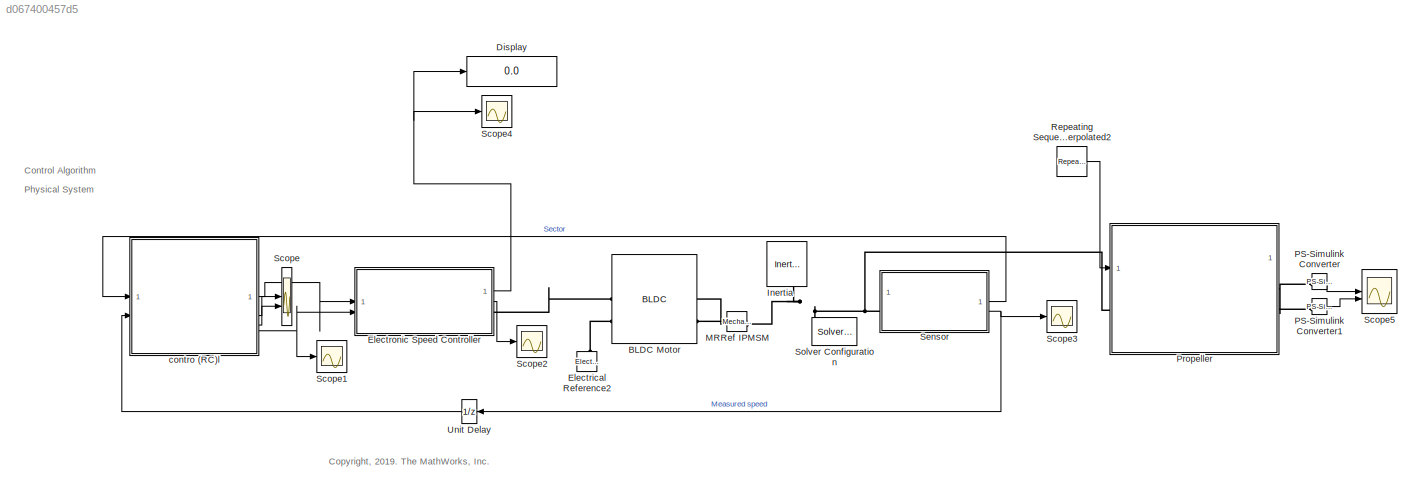
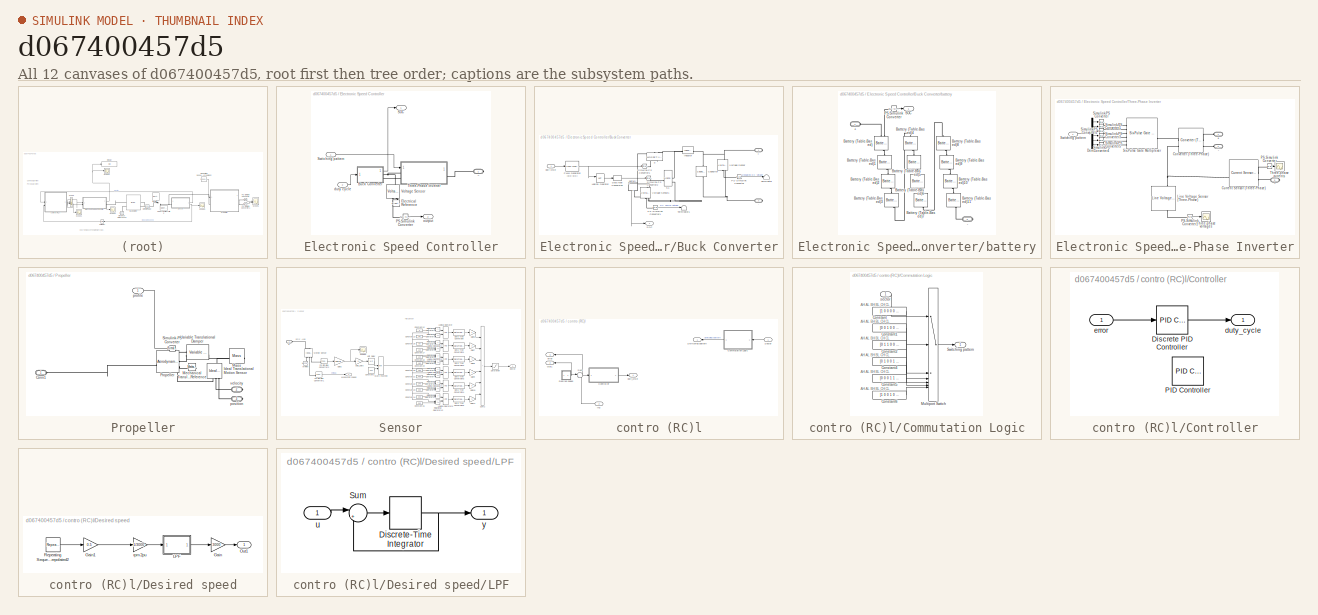
[diagram: thumbnail index - all 12 canvases of the model, root first then tree order]
MODEL slx_d067400457d5
KIND model
CONFIG AbsTol = auto
CONFIG EnableMultiTasking = on
CONFIG FixedStep = auto
CONFIG InitFcn = load bldcData\n\n\n
CONFIG MaxStep = Ts_motor
CONFIG MinStep = auto
CONFIG RelTol = 1e-3
CONFIG SampleTimeConstraint = Unconstrained
CONFIG SolverName = odeN
CONFIG StartTime = 0.0
CONFIG StopTime = 70
WORKSPACE source: mxarray member
WORKSPACE encoderResolution = 2000
WORKSPACE hallOffset = '0.5'
WORKSPACE indexOffset = 850
WORKSPACE polePairs = '4'
BLOCK [Reference] BLDC Motor  REF=ee_lib/Electromechanical/Permanent Magnet/BLDC
  SourceBlock = ee_lib/Electromechanical/Permanent Magnet/BLDC
  SourceType = BLDC
BLOCK [Display] Display
  Decimation = 1
BLOCK [Reference] Electrical Reference2  REF=fl_lib/Electrical/Electrical Elements/Electrical Reference
  NameLocation = right
  SourceBlock = fl_lib/Electrical/Electrical Elements/Electrical Reference
  SourceType = Electrical Reference
BLOCK [SubSystem] Electronic Speed Controller
  PortSchema = {"entries":[{"content":{"sides":[{"content":{"connectorIds":["In1","In2"]},"type":"ConnectorPlacement.EquallySpacedRectSide","uuid":"212924a2-9881-44be-ac25-102a7042a35a"},{"content":{"connectorIds":["Out1","RConn1","Out2"],"side":"RIGHT"},"type":"ConnectorPlacement.EquallySpacedRectSide","uuid":"ab36a5a1-3331-4a17-9c6e-72581a95a5e6"},{"content":{"side":"TOP"},"type":"ConnectorPlacement.EquallySpa...<+244ch>
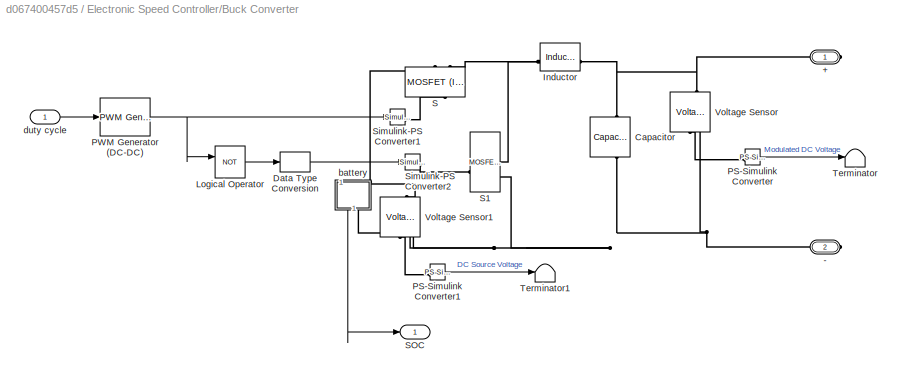
BLOCK [SubSystem] Electronic Speed Controller/Buck Converter
BLOCK [PMIOPort] Electronic Speed Controller/Buck Converter/+ 
  Side = Right
BLOCK [PMIOPort] Electronic Speed Controller/Buck Converter/- 
  Port = 2
  Side = Right
BLOCK [Reference] Electronic Speed Controller/Buck Converter/Capacitor  REF=fl_lib/Electrical/Electrical Elements/Capacitor
  NameLocation = left
  SourceBlock = fl_lib/Electrical/Electrical Elements/Capacitor
  SourceType = Capacitor
BLOCK [DataTypeConversion] Electronic Speed Controller/Buck Converter/Data Type Conversion
  RndMeth = Floor
  SaturateOnIntegerOverflow = off
BLOCK [Reference] Electronic Speed Controller/Buck Converter/Inductor  REF=fl_lib/Electrical/Electrical Elements/Inductor
  SourceBlock = fl_lib/Electrical/Electrical Elements/Inductor
  SourceType = Inductor
BLOCK [Logic] Electronic Speed Controller/Buck Converter/Logical Operator
  AllPortsSameDT = off
  Operator = NOT
  OutDataTypeStr = boolean
BLOCK [Reference] Electronic Speed Controller/Buck Converter/PS-Simulink Converter  REF=nesl_utility/PS-Simulink
Converter
  SourceBlock = nesl_utility/PS-Simulink\nConverter
  SourceType = PS-Simulink\nConverter
BLOCK [Reference] Electronic Speed Controller/Buck Converter/PS-Simulink Converter1  REF=nesl_utility/PS-Simulink
Converter
  SourceBlock = nesl_utility/PS-Simulink\nConverter
  SourceType = PS-Simulink\nConverter
BLOCK [Reference] Electronic Speed Controller/Buck Converter/PWM Generator (DC-DC)  REF=spsPWMGeneratorDCDCLib/PWM Generator
(DC-DC)
  LibrarySourceBlock = sps_lib/Power Electronics/Power Electronics Control/PWM Generator\n(DC-DC)
  SourceBlock = spsPWMGeneratorDCDCLib/PWM Generator\n(DC-DC)
  SourceType = PWM Generator (DC-DC)
BLOCK [Reference] Electronic Speed Controller/Buck Converter/S  REF=ee_lib/Semiconductors &
Converters/MOSFET
(Ideal,
Switching)
  NameLocation = right
  SourceBlock = ee_lib/Semiconductors &\nConverters/MOSFET\n(Ideal,\nSwitching)
  SourceType = MOSFET\n(Ideal,\nSwitching)
BLOCK [Reference] Electronic Speed Controller/Buck Converter/S1  REF=ee_lib/Semiconductors &
Converters/MOSFET
(Ideal,
Switching)
  SourceBlock = ee_lib/Semiconductors &\nConverters/MOSFET\n(Ideal,\nSwitching)
  SourceType = MOSFET\n(Ideal,\nSwitching)
BLOCK [Outport] Electronic Speed Controller/Buck Converter/SOC
BLOCK [Reference] Electronic Speed Controller/Buck Converter/Simulink-PS Converter1  REF=nesl_utility/Simulink-PS
Converter
  SourceBlock = nesl_utility/Simulink-PS\nConverter
  SourceType = Simulink-PS\nConverter
BLOCK [Reference] Electronic Speed Controller/Buck Converter/Simulink-PS Converter2  REF=nesl_utility/Simulink-PS
Converter
  SourceBlock = nesl_utility/Simulink-PS\nConverter
  SourceType = Simulink-PS\nConverter
BLOCK [Terminator] Electronic Speed Controller/Buck Converter/Terminator
BLOCK [Terminator] Electronic Speed Controller/Buck Converter/Terminator1
BLOCK [Reference] Electronic Speed Controller/Buck Converter/Voltage Sensor  REF=fl_lib/Electrical/Electrical Sensors/Voltage Sensor
  NameLocation = right
  SourceBlock = fl_lib/Electrical/Electrical Sensors/Voltage Sensor
  SourceType = Voltage Sensor
BLOCK [Reference] Electronic Speed Controller/Buck Converter/Voltage Sensor1  REF=fl_lib/Electrical/Electrical Sensors/Voltage Sensor
  NameLocation = right
  SourceBlock = fl_lib/Electrical/Electrical Sensors/Voltage Sensor
  SourceType = Voltage Sensor
BLOCK [SubSystem] Electronic Speed Controller/Buck Converter/battery
  NameLocation = left
  PortSchema = {"entries":[{"content":{"sides":[{"content":{"connectorIds":["LConn1"]},"type":"ConnectorPlacement.EquallySpacedRectSide","uuid":"d7b7a570-c2f3-4edc-8ff7-7a0e9bbc30c9"},{"content":{"connectorIds":["RConn1"],"side":"RIGHT"},"type":"ConnectorPlacement.EquallySpacedRectSide","uuid":"f947fad4-3458-4e9f-ac29-c97d44dde702"},{"content":{"side":"TOP"},"type":"ConnectorPlacement.EquallySpacedRectSide","uui...<+377ch>
BLOCK [PMIOPort] Electronic Speed Controller/Buck Converter/battery/+
  Side = Left
BLOCK [PMIOPort] Electronic Speed Controller/Buck Converter/battery/-
  Port = 2
  Side = Right
BLOCK [Reference] Electronic Speed Controller/Buck Converter/battery/Battery (Table-Based)  REF=batteryecm_lib/Battery
(Table-Based)
  NameLocation = right
  SourceBlock = batteryecm_lib/Battery\n(Table-Based)
  SourceType = Battery\n(Table-Based)
BLOCK [Reference] Electronic Speed Controller/Buck Converter/battery/Battery (Table-Based)1  REF=batteryecm_lib/Battery
(Table-Based)
  NameLocation = right
  SourceBlock = batteryecm_lib/Battery\n(Table-Based)
  SourceType = Battery\n(Table-Based)
BLOCK [Reference] Electronic Speed Controller/Buck Converter/battery/Battery (Table-Based)10  REF=batteryecm_lib/Battery
(Table-Based)
  NameLocation = right
  SourceBlock = batteryecm_lib/Battery\n(Table-Based)
  SourceType = Battery\n(Table-Based)
BLOCK [Reference] Electronic Speed Controller/Buck Converter/battery/Battery (Table-Based)11  REF=batteryecm_lib/Battery
(Table-Based)
  NameLocation = right
  SourceBlock = batteryecm_lib/Battery\n(Table-Based)
  SourceType = Battery\n(Table-Based)
BLOCK [Reference] Electronic Speed Controller/Buck Converter/battery/Battery (Table-Based)2  REF=batteryecm_lib/Battery
(Table-Based)
  NameLocation = right
  SourceBlock = batteryecm_lib/Battery\n(Table-Based)
  SourceType = Battery\n(Table-Based)
BLOCK [Reference] Electronic Speed Controller/Buck Converter/battery/Battery (Table-Based)3  REF=batteryecm_lib/Battery
(Table-Based)
  NameLocation = right
  SourceBlock = batteryecm_lib/Battery\n(Table-Based)
  SourceType = Battery\n(Table-Based)
BLOCK [Reference] Electronic Speed Controller/Buck Converter/battery/Battery (Table-Based)4  REF=batteryecm_lib/Battery
(Table-Based)
  NameLocation = right
  SourceBlock = batteryecm_lib/Battery\n(Table-Based)
  SourceType = Battery\n(Table-Based)
BLOCK [Reference] Electronic Speed Controller/Buck Converter/battery/Battery (Table-Based)5  REF=batteryecm_lib/Battery
(Table-Based)
  NameLocation = right
  SourceBlock = batteryecm_lib/Battery\n(Table-Based)
  SourceType = Battery\n(Table-Based)
BLOCK [Reference] Electronic Speed Controller/Buck Converter/battery/Battery (Table-Based)6  REF=batteryecm_lib/Battery
(Table-Based)
  NameLocation = right
  SourceBlock = batteryecm_lib/Battery\n(Table-Based)
  SourceType = Battery\n(Table-Based)
BLOCK [Reference] Electronic Speed Controller/Buck Converter/battery/Battery (Table-Based)7  REF=batteryecm_lib/Battery
(Table-Based)
  NameLocation = right
  SourceBlock = batteryecm_lib/Battery\n(Table-Based)
  SourceType = Battery\n(Table-Based)
BLOCK [Reference] Electronic Speed Controller/Buck Converter/battery/Battery (Table-Based)8  REF=batteryecm_lib/Battery
(Table-Based)
  NameLocation = right
  SourceBlock = batteryecm_lib/Battery\n(Table-Based)
  SourceType = Battery\n(Table-Based)
BLOCK [Reference] Electronic Speed Controller/Buck Converter/battery/Battery (Table-Based)9  REF=batteryecm_lib/Battery
(Table-Based)
  NameLocation = right
  SourceBlock = batteryecm_lib/Battery\n(Table-Based)
  SourceType = Battery\n(Table-Based)
BLOCK [Reference] Electronic Speed Controller/Buck Converter/battery/PS-Simulink Converter  REF=nesl_utility/PS-Simulink
Converter
  SourceBlock = nesl_utility/PS-Simulink\nConverter
  SourceType = PS-Simulink\nConverter
BLOCK [Outport] Electronic Speed Controller/Buck Converter/battery/SOC
BLOCK [Inport] Electronic Speed Controller/Buck Converter/duty cycle
BLOCK [Reference] Electronic Speed Controller/Electrical Reference  REF=fl_lib/Electrical/Electrical Elements/Electrical Reference
  NameLocation = right
  SourceBlock = fl_lib/Electrical/Electrical Elements/Electrical Reference
  SourceType = Electrical Reference
BLOCK [Reference] Electronic Speed Controller/PS-Simulink Converter  REF=nesl_utility/PS-Simulink
Converter
  SourceBlock = nesl_utility/PS-Simulink\nConverter
  SourceType = PS-Simulink\nConverter
BLOCK [Outport] Electronic Speed Controller/SOC
BLOCK [Inport] Electronic Speed Controller/Switching pattern
BLOCK [SubSystem] Electronic Speed Controller/Three-Phase Inverter
BLOCK [PMIOPort] Electronic Speed Controller/Three-Phase Inverter/+
  NameLocation = top
  Side = Left
BLOCK [PMIOPort] Electronic Speed Controller/Three-Phase Inverter/-
  NameLocation = top
  Port = 2
  Side = Left
BLOCK [Reference] Electronic Speed Controller/Three-Phase Inverter/Converter (Three-Phase)  REF=ee_lib/Semiconductors &
Converters/Converters/Converter
(Three-Phase)
  SourceBlock = ee_lib/Semiconductors &\nConverters/Converters/Converter\n(Three-Phase)
  SourceType = Converter\n(Three-Phase)
BLOCK [Reference] Electronic Speed Controller/Three-Phase Inverter/Current Sensor (Three-Phase)  REF=ee_lib/Sensors &
Transducers/Current Sensor
(Three-Phase)
  SourceBlock = ee_lib/Sensors &\nTransducers/Current Sensor\n(Three-Phase)
  SourceType = Current Sensor\n(Three-Phase)
BLOCK [Demux] Electronic Speed Controller/Three-Phase Inverter/Demux
  Outputs = 6
BLOCK [Reference] Electronic Speed Controller/Three-Phase Inverter/Line Voltage Sensor (Three-Phase)  REF=ee_lib/Sensors &
Transducers/Line Voltage Sensor
(Three-Phase)
  NameLocation = right
  SourceBlock = ee_lib/Sensors &\nTransducers/Line Voltage Sensor\n(Three-Phase)
  SourceType = Line Voltage Sensor\n(Three-Phase)
BLOCK [Reference] Electronic Speed Controller/Three-Phase Inverter/PS-Simulink Converter  REF=nesl_utility/PS-Simulink
Converter
  SourceBlock = nesl_utility/PS-Simulink\nConverter
  SourceType = PS-Simulink\nConverter
BLOCK [Reference] Electronic Speed Controller/Three-Phase Inverter/PS-Simulink Converter1  REF=nesl_utility/PS-Simulink
Converter
  SourceBlock = nesl_utility/PS-Simulink\nConverter
  SourceType = PS-Simulink\nConverter
BLOCK [Reference] Electronic Speed Controller/Three-Phase Inverter/Simulink-PS Converter  REF=nesl_utility/Simulink-PS
Converter
  SourceBlock = nesl_utility/Simulink-PS\nConverter
  SourceType = Simulink-PS\nConverter
BLOCK [Reference] Electronic Speed Controller/Three-Phase Inverter/Simulink-PS Converter1  REF=nesl_utility/Simulink-PS
Converter
  SourceBlock = nesl_utility/Simulink-PS\nConverter
  SourceType = Simulink-PS\nConverter
BLOCK [Reference] Electronic Speed Controller/Three-Phase Inverter/Simulink-PS Converter2  REF=nesl_utility/Simulink-PS
Converter
  SourceBlock = nesl_utility/Simulink-PS\nConverter
  SourceType = Simulink-PS\nConverter
BLOCK [Reference] Electronic Speed Controller/Three-Phase Inverter/Simulink-PS Converter3  REF=nesl_utility/Simulink-PS
Converter
  SourceBlock = nesl_utility/Simulink-PS\nConverter
  SourceType = Simulink-PS\nConverter
BLOCK [Reference] Electronic Speed Controller/Three-Phase Inverter/Simulink-PS Converter4  REF=nesl_utility/Simulink-PS
Converter
  SourceBlock = nesl_utility/Simulink-PS\nConverter
  SourceType = Simulink-PS\nConverter
BLOCK [Reference] Electronic Speed Controller/Three-Phase Inverter/Simulink-PS Converter5  REF=nesl_utility/Simulink-PS
Converter
  SourceBlock = nesl_utility/Simulink-PS\nConverter
  SourceType = Simulink-PS\nConverter
BLOCK [Reference] Electronic Speed Controller/Three-Phase Inverter/Six-Pulse Gate Multiplexer  REF=ee_lib/Semiconductors &
Converters/Converters/Six-Pulse Gate
Multiplexer
  SourceBlock = ee_lib/Semiconductors &\nConverters/Converters/Six-Pulse Gate\nMultiplexer
  SourceType = Six-Pulse Gate\nMultiplexer
BLOCK [Inport] Electronic Speed Controller/Three-Phase Inverter/Switching pattern
BLOCK [Scope] Electronic Speed Controller/Three-Phase Inverter/Three-phase currents
  Floating = off
  NumInputPorts = 1
  ScopeSpecificationString = Simulink.scopes.TimeScopeBlockCfg('CurrentConfiguration', extmgr.ConfigurationSet(extmgr.Configuration('Core','General UI',true),extmgr.Configuration('Core','Source UI',true),extmgr.Configuration('Sources','WiredSimulink',true,'DataLoggingVariableName','ScopeData1'),extmgr.Configuration('Visuals','Time Domain',true,'SerializedDisplays',{struct('MinYLimReal','-280.11334','MaxYLimReal','280.11276','...<+1618ch>
BLOCK [Scope] Electronic Speed Controller/Three-Phase Inverter/Three-phase voltages
  Floating = off
  NameLocation = top
  NumInputPorts = 1
  ScopeSpecificationString = Simulink.scopes.TimeScopeBlockCfg('CurrentConfiguration', extmgr.ConfigurationSet(extmgr.Configuration('Core','General UI',true),extmgr.Configuration('Core','Source UI',true),extmgr.Configuration('Sources','WiredSimulink',true,'DataLoggingVariableName','ScopeData2'),extmgr.Configuration('Visuals','Time Domain',true,'SerializedDisplays',{struct('MinYLimReal','-76.713','MaxYLimReal','76.57791','YLab...<+1435ch>
BLOCK [PMIOPort] Electronic Speed Controller/Three-Phase Inverter/~
  Port = 3
  Side = Right
BLOCK [Reference] Electronic Speed Controller/Voltage Sensor  REF=fl_lib/Electrical/Electrical Sensors/Voltage Sensor
  NameLocation = right
  SourceBlock = fl_lib/Electrical/Electrical Sensors/Voltage Sensor
  SourceType = Voltage Sensor
BLOCK [Inport] Electronic Speed Controller/duty cycle
  Port = 2
BLOCK [Outport] Electronic Speed Controller/output
  Port = 2
BLOCK [PMIOPort] Electronic Speed Controller/~
  Side = Right
BLOCK [Reference] Inertia  REF=fl_lib/Mechanical/Rotational Elements/Inertia
  NameLocation = right
  SourceBlock = fl_lib/Mechanical/Rotational Elements/Inertia
  SourceType = Inertia
BLOCK [Reference] MRRef IPMSM  REF=fl_lib/Mechanical/Rotational Elements/Mechanical
Rotational Reference
  NameLocation = top
  SourceBlock = fl_lib/Mechanical/Rotational Elements/Mechanical\nRotational Reference
  SourceType = Mechanical\nRotational Reference
BLOCK [Reference] PS-Simulink Converter  REF=nesl_utility/PS-Simulink
Converter
  SourceBlock = nesl_utility/PS-Simulink\nConverter
  SourceType = PS-Simulink\nConverter
BLOCK [Reference] PS-Simulink Converter1  REF=nesl_utility/PS-Simulink
Converter
  SourceBlock = nesl_utility/PS-Simulink\nConverter
  SourceType = PS-Simulink\nConverter
BLOCK [SubSystem] Propeller
BLOCK [Reference] Propeller/ Propeller  REF=sdl_lib/Engines & Motors/Aerodynamic
Propeller
  SourceBlock = sdl_lib/Engines & Motors/Aerodynamic\nPropeller
  SourceType = Aerodynamic\nPropeller
BLOCK [PMIOPort] Propeller/Conn1
  Side = Left
BLOCK [Reference] Propeller/Ideal Translational Motion Sensor  REF=fl_lib/Mechanical/Mechanical Sensors/Ideal Translational
Motion Sensor
  NameLocation = left
  SourceBlock = fl_lib/Mechanical/Mechanical Sensors/Ideal Translational\nMotion Sensor
  SourceType = Ideal Translational\nMotion Sensor
BLOCK [Reference] Propeller/Mass  REF=fl_lib/Mechanical/Translational
Elements/Mass
  NameLocation = top
  SourceBlock = fl_lib/Mechanical/Translational\nElements/Mass
  SourceType = Mass
BLOCK [Reference] Propeller/Mechanical Translational Reference  REF=fl_lib/Mechanical/Translational
Elements/Mechanical
Translational
Reference
  NameLocation = top
  SourceBlock = fl_lib/Mechanical/Translational\nElements/Mechanical\nTranslational\nReference
  SourceType = Mechanical\nTranslational\nReference
BLOCK [Reference] Propeller/Simulink-PS Converter  REF=nesl_utility/Simulink-PS
Converter
  SourceBlock = nesl_utility/Simulink-PS\nConverter
  SourceType = Simulink-PS\nConverter
BLOCK [Reference] Propeller/Variable Translational Damper  REF=sdl_lib/Couplings & Drives/Springs & Dampers/Variable
Translational Damper
  SourceBlock = sdl_lib/Couplings & Drives/Springs & Dampers/Variable\nTranslational Damper
  SourceType = Variable\nTranslational Damper
BLOCK [PMIOPort] Propeller/position
  Port = 3
  Side = Right
BLOCK [Inport] Propeller/profile
BLOCK [PMIOPort] Propeller/velocity
  Port = 2
  Side = Right
BLOCK [Reference] Repeating Sequence Interpolated2  REF=simulink/Sources/Repeating
Sequence
Interpolated
  SourceBlock = simulink/Sources/Repeating\nSequence\nInterpolated
  SourceType = Repeating Sequence Interpolated
BLOCK [Scope] Scope
  Floating = off
  NumInputPorts = 2
  ScopeSpecificationString = Simulink.scopes.TimeScopeBlockCfg('CurrentConfiguration', extmgr.ConfigurationSet(extmgr.Configuration('Core','General UI',true),extmgr.Configuration('Core','Source UI',true),extmgr.Configuration('Sources','WiredSimulink',true,'DataLoggingVariableName','ScopeData1'),extmgr.Configuration('Visuals','Time Domain',true,'SerializedDisplays',{struct('MinYLimReal','-69.69398','MaxYLimReal','577.18822','Y...<+1541ch>
BLOCK [Scope] Scope1
  Floating = off
  NumInputPorts = 1
  ScopeSpecificationString = Simulink.scopes.TimeScopeBlockCfg('CurrentConfiguration', extmgr.ConfigurationSet(extmgr.Configuration('Core','General UI',true),extmgr.Configuration('Core','Source UI',true),extmgr.Configuration('Sources','WiredSimulink',true,'DataLoggingVariableName','ScopeData2'),extmgr.Configuration('Visuals','Time Domain',true,'SerializedDisplays',{struct('MinYLimReal','-0.03395','MaxYLimReal','0.30551','YLab...<+1535ch>
BLOCK [Scope] Scope2
  Floating = off
  NumInputPorts = 1
  ScopeSpecificationString = Simulink.scopes.TimeScopeBlockCfg('CurrentConfiguration', extmgr.ConfigurationSet(extmgr.Configuration('Core','General UI',true),extmgr.Configuration('Core','Source UI',true),extmgr.Configuration('Sources','WiredSimulink',true,'DataLoggingVariableName','ScopeData3'),extmgr.Configuration('Visuals','Time Domain',true,'SerializedDisplays',{struct('MinYLimReal','-61.7712','MaxYLimReal','69.09622','YLa...<+1581ch>
BLOCK [Scope] Scope3
  Floating = off
  NumInputPorts = 1
  ScopeSpecificationString = Simulink.scopes.TimeScopeBlockCfg('CurrentConfiguration', extmgr.ConfigurationSet(extmgr.Configuration('Core','General UI',true),extmgr.Configuration('Core','Source UI',true),extmgr.Configuration('Sources','WiredSimulink',true,'DataLoggingVariableName','ScopeData4'),extmgr.Configuration('Visuals','Time Domain',true,'SerializedDisplays',{struct('MinYLimReal','-55.22714','MaxYLimReal','497.04423','Y...<+1528ch>
BLOCK [Scope] Scope4
  Floating = off
  NumInputPorts = 1
  ScopeSpecificationString = Simulink.scopes.TimeScopeBlockCfg('CurrentConfiguration', extmgr.ConfigurationSet(extmgr.Configuration('Core','General UI',true),extmgr.Configuration('Core','Source UI',true),extmgr.Configuration('Sources','WiredSimulink',true,'DataLoggingVariableName','ScopeData1'),extmgr.Configuration('Visuals','Time Domain',true,'SerializedDisplays',{struct('MinYLimReal','0.71343','MaxYLimReal','1.03184','YLabe...<+1530ch>
BLOCK [Scope] Scope5
  Floating = off
  NumInputPorts = 2
  ScopeSpecificationString = Simulink.scopes.TimeScopeBlockCfg('CurrentConfiguration', extmgr.ConfigurationSet(extmgr.Configuration('Core','General UI',true),extmgr.Configuration('Core','Source UI',true),extmgr.Configuration('Sources','WiredSimulink',true,'DataLoggingVariableName','ScopeData2'),extmgr.Configuration('Visuals','Time Domain',true,'SerializedDisplays',{struct('MinYLimReal','-4416.41047','MaxYLimReal','39747.69419...<+1571ch>
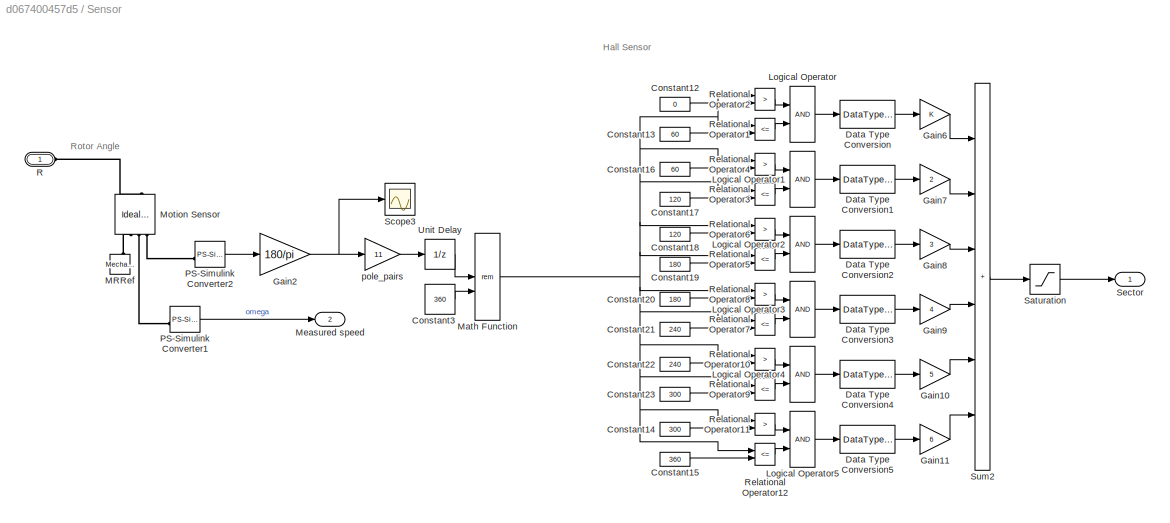
BLOCK [SubSystem] Sensor
BLOCK [Constant] Sensor/Constant12
  Value = 0
BLOCK [Constant] Sensor/Constant13
  Value = 60
BLOCK [Constant] Sensor/Constant14
  Value = 300
BLOCK [Constant] Sensor/Constant15
  Value = 360
BLOCK [Constant] Sensor/Constant16
  Value = 60
BLOCK [Constant] Sensor/Constant17
  Value = 120
BLOCK [Constant] Sensor/Constant18
  Value = 120
BLOCK [Constant] Sensor/Constant19
  Value = 180
BLOCK [Constant] Sensor/Constant20
  Value = 180
BLOCK [Constant] Sensor/Constant21
  Value = 240
BLOCK [Constant] Sensor/Constant22
  Value = 240
BLOCK [Constant] Sensor/Constant23
  Value = 300
BLOCK [Constant] Sensor/Constant3
  Value = 360
BLOCK [DataTypeConversion] Sensor/Data Type Conversion
BLOCK [DataTypeConversion] Sensor/Data Type Conversion1
BLOCK [DataTypeConversion] Sensor/Data Type Conversion2
BLOCK [DataTypeConversion] Sensor/Data Type Conversion3
BLOCK [DataTypeConversion] Sensor/Data Type Conversion4
BLOCK [DataTypeConversion] Sensor/Data Type Conversion5
BLOCK [Gain] Sensor/Gain10
  Gain = 5
  OutDataTypeStr = Inherit: Same as input
  ParamDataTypeStr = Inherit: Same as input
  SaturateOnIntegerOverflow = on
BLOCK [Gain] Sensor/Gain11
  Gain = 6
  OutDataTypeStr = Inherit: Same as input
  ParamDataTypeStr = Inherit: Same as input
  SaturateOnIntegerOverflow = on
BLOCK [Gain] Sensor/Gain2
  Gain = 180/pi
BLOCK [Gain] Sensor/Gain6
  OutDataTypeStr = Inherit: Same as input
  ParamDataTypeStr = Inherit: Same as input
  SaturateOnIntegerOverflow = on
BLOCK [Gain] Sensor/Gain7
  Gain = 2
  OutDataTypeStr = Inherit: Same as input
  ParamDataTypeStr = Inherit: Same as input
  SaturateOnIntegerOverflow = on
BLOCK [Gain] Sensor/Gain8
  Gain = 3
  OutDataTypeStr = Inherit: Same as input
  ParamDataTypeStr = Inherit: Same as input
  SaturateOnIntegerOverflow = on
BLOCK [Gain] Sensor/Gain9
  Gain = 4
  OutDataTypeStr = Inherit: Same as input
  ParamDataTypeStr = Inherit: Same as input
  SaturateOnIntegerOverflow = on
BLOCK [Logic] Sensor/Logical Operator
BLOCK [Logic] Sensor/Logical Operator1
BLOCK [Logic] Sensor/Logical Operator2
BLOCK [Logic] Sensor/Logical Operator3
BLOCK [Logic] Sensor/Logical Operator4
BLOCK [Logic] Sensor/Logical Operator5
BLOCK [Reference] Sensor/MRRef  REF=fl_lib/Mechanical/Rotational Elements/Mechanical
Rotational Reference
  NameLocation = left
  SourceBlock = fl_lib/Mechanical/Rotational Elements/Mechanical\nRotational Reference
  SourceType = Mechanical\nRotational Reference
BLOCK [Math] Sensor/Math Function
  Operator = rem
  SignedPower = on
BLOCK [Outport] Sensor/Measured speed
  Port = 2
BLOCK [Reference] Sensor/Motion Sensor  REF=fl_lib/Mechanical/Mechanical Sensors/Ideal Rotational
Motion Sensor
  NameLocation = right
  SourceBlock = fl_lib/Mechanical/Mechanical Sensors/Ideal Rotational\nMotion Sensor
  SourceType = Ideal Rotational\nMotion Sensor
BLOCK [Reference] Sensor/PS-Simulink Converter1  REF=nesl_utility/PS-Simulink
Converter
  SourceBlock = nesl_utility/PS-Simulink\nConverter
  SourceType = PS-Simulink\nConverter
BLOCK [Reference] Sensor/PS-Simulink Converter2  REF=nesl_utility/PS-Simulink
Converter
  SourceBlock = nesl_utility/PS-Simulink\nConverter
  SourceType = PS-Simulink\nConverter
BLOCK [PMIOPort] Sensor/R
  NameLocation = top
  Side = Left
BLOCK [RelationalOperator] Sensor/Relational Operator1
  Operator = <=
BLOCK [RelationalOperator] Sensor/Relational Operator10
  Operator = >
BLOCK [RelationalOperator] Sensor/Relational Operator11
  Operator = >
BLOCK [RelationalOperator] Sensor/Relational Operator12
  Operator = <=
BLOCK [RelationalOperator] Sensor/Relational Operator2
  Operator = >
BLOCK [RelationalOperator] Sensor/Relational Operator3
  Operator = <=
BLOCK [RelationalOperator] Sensor/Relational Operator4
  Operator = >
BLOCK [RelationalOperator] Sensor/Relational Operator5
  Operator = <=
BLOCK [RelationalOperator] Sensor/Relational Operator6
  Operator = >
BLOCK [RelationalOperator] Sensor/Relational Operator7
  Operator = <=
BLOCK [RelationalOperator] Sensor/Relational Operator8
  Operator = >
BLOCK [RelationalOperator] Sensor/Relational Operator9
  Operator = <=
BLOCK [Saturate] Sensor/Saturation
  LowerLimit = 1
  UpperLimit = 6
BLOCK [Scope] Sensor/Scope3
  Floating = off
  NumInputPorts = 1
  ScopeSpecificationString = Simulink.scopes.TimeScopeBlockCfg('CurrentConfiguration', extmgr.ConfigurationSet(extmgr.Configuration('Core','General UI',true),extmgr.Configuration('Core','Source UI',true),extmgr.Configuration('Sources','WiredSimulink',true,'DataLoggingVariableName','ScopeData1','DataLogging',true,'DataLoggingSaveFormat','StructureWithTime'),extmgr.Configuration('Visuals','Time Domain',true,'SerializedDisplays'...<+1543ch>
BLOCK [Outport] Sensor/Sector
  NameLocation = top
BLOCK [Sum] Sensor/Sum2
  IconShape = rectangular
  InputSameDT = on
  Inputs = ++++++
  OutDataTypeStr = Inherit: Same as first input
  SaturateOnIntegerOverflow = on
BLOCK [UnitDelay] Sensor/Unit Delay
  HasFrameUpgradeWarning = on
  SampleTime = Ts_motor
BLOCK [Gain] Sensor/pole_pairs
  Gain = 11
  NameLocation = top
BLOCK [Reference] Solver Configuration  REF=nesl_utility/Solver
Configuration
  NameLocation = top
  SourceBlock = nesl_utility/Solver\nConfiguration
  SourceType = Solver\nConfiguration
BLOCK [UnitDelay] Unit Delay
  HasFrameUpgradeWarning = on
  SampleTime = -1
BLOCK [SubSystem] contro (RC)l
BLOCK [SubSystem] contro (RC)l/Commutation Logic
  ShowPortLabels = none
BLOCK [Outport] contro (RC)l/Commutation Logic/  Switching pattern
  VectorParamsAs1DForOutWhenUnconnected = off
BLOCK [Constant] contro (RC)l/Commutation Logic/Constant
  Value = [1 0 0 0 0 1]
BLOCK [Constant] contro (RC)l/Commutation Logic/Constant1
  Value = [0 0 1 0 0 1]
BLOCK [Constant] contro (RC)l/Commutation Logic/Constant2
  Value = [0 1 1 0 0 0]
BLOCK [Constant] contro (RC)l/Commutation Logic/Constant4
  Value = [0 1 0 0 1 0]
BLOCK [Constant] contro (RC)l/Commutation Logic/Constant5
  Value = [0 0 0 1 1 0]
BLOCK [Constant] contro (RC)l/Commutation Logic/Constant6
  Value = [1 0 0 1 0 0]
BLOCK [MultiPortSwitch] contro (RC)l/Commutation Logic/Multiport Switch
  InputSameDT = off
  Inputs = 6
  SaturateOnIntegerOverflow = off
BLOCK [Inport] contro (RC)l/Commutation Logic/sector
  NameLocation = top
BLOCK [SubSystem] contro (RC)l/Controller
BLOCK [Reference] contro (RC)l/Controller/Discrete PID Controller  REF=slpidlib/PID Controller
  SourceBlock = slpidlib/PID Controller
  SourceType = PID 1dof
BLOCK [Reference] contro (RC)l/Controller/PID Controller  REF=slpidlib/PID Controller
  Commented = on
  LibrarySourceBlock = simulink/Continuous/PID Controller
  SourceBlock = slpidlib/PID Controller
  SourceType = PID 1dof
BLOCK [Outport] contro (RC)l/Controller/duty_cycle
BLOCK [Inport] contro (RC)l/Controller/error
BLOCK [SubSystem] contro (RC)l/Desired speed
  ShowPortLabels = none
BLOCK [Gain] contro (RC)l/Desired speed/Gain
  Gain = 3000
BLOCK [Gain] contro (RC)l/Desired speed/Gain1
  Gain = 0.5
BLOCK [SubSystem] contro (RC)l/Desired speed/LPF
BLOCK [DiscreteIntegrator] contro (RC)l/Desired speed/LPF/Discrete-Time Integrator
  ICPrevOutput = DiscIntNeverNeededParam
  ICPrevScaledInput = DiscIntNeverNeededParam
  InitialConditionSetting = Auto
  SampleTime = Ts_motor
  gainval = 20
BLOCK [Sum] contro (RC)l/Desired speed/LPF/Sum
  Inputs = |+-
BLOCK [Inport] contro (RC)l/Desired speed/LPF/u
BLOCK [Outport] contro (RC)l/Desired speed/LPF/y
BLOCK [Outport] contro (RC)l/Desired speed/Out1
BLOCK [Reference] contro (RC)l/Desired speed/Repeating Sequence Interpolated2  REF=simulink/Sources/Repeating
Sequence
Interpolated
  SourceBlock = simulink/Sources/Repeating\nSequence\nInterpolated
  SourceType = Repeating Sequence Interpolated
BLOCK [Gain] contro (RC)l/Desired speed/rpm2pu
  Gain = 1/3000
  OutDataTypeStr = Inherit: Same as input
  RndMeth = Simplest
BLOCK [Inport] contro (RC)l/In2
  Port = 2
BLOCK [Outport] contro (RC)l/Out1
  NameLocation = top
  Port = 2
BLOCK [Inport] contro (RC)l/Sector
  NameLocation = top
BLOCK [Sum] contro (RC)l/Sum
  Inputs = |+-
BLOCK [Outport] contro (RC)l/Switching pattern
  NameLocation = top
BLOCK [Outport] contro (RC)l/duty_cycle
  Port = 4
BLOCK [Outport] contro (RC)l/error
  NameLocation = top
  Port = 3
ANNOTATION (root): Control Algorithm
ANNOTATION (root): <copyright redacted>
ANNOTATION (root): Physical System
ANNOTATION Sensor: Hall Sensor
ANNOTATION Sensor: Rotor Angle
ANNOTATION contro (RC)l/Commutation Logic: AH AL BH BL CH CL
LINE Electronic Speed Controller/Buck Converter/Data Type Conversion:1 -> Electronic Speed Controller/Buck Converter/Simulink-PS Converter2:1
LINE Electronic Speed Controller/Buck Converter/Logical Operator:1 -> Electronic Speed Controller/Buck Converter/Data Type Conversion:1
LINE Electronic Speed Controller/Buck Converter/PS-Simulink Converter1:1 -> Electronic Speed Controller/Buck Converter/Terminator1:1
LINE Electronic Speed Controller/Buck Converter/PS-Simulink Converter:1 -> Electronic Speed Controller/Buck Converter/Terminator:1
NET Electronic Speed Controller/Buck Converter/PWM Generator (DC-DC):1 -> Electronic Speed Controller/Buck Converter/Logical Operator:1, Electronic Speed Controller/Buck Converter/Simulink-PS Converter1:1
LINE Electronic Speed Controller/Buck Converter/battery/PS-Simulink Converter:1 -> Electronic Speed Controller/Buck Converter/battery/SOC:1
LINE Electronic Speed Controller/Buck Converter/battery:1 -> Electronic Speed Controller/Buck Converter/SOC:1
LINE Electronic Speed Controller/Buck Converter/duty cycle:1 -> Electronic Speed Controller/Buck Converter/PWM Generator (DC-DC):1
LINE Electronic Speed Controller/Buck Converter:1 -> Electronic Speed Controller/SOC:1
LINE Electronic Speed Controller/PS-Simulink Converter:1 -> Electronic Speed Controller/output:1
LINE Electronic Speed Controller/Switching pattern:1 -> Electronic Speed Controller/Three-Phase Inverter:1
LINE Electronic Speed Controller/Three-Phase Inverter/Demux:1 -> Electronic Speed Controller/Three-Phase Inverter/Simulink-PS Converter:1
LINE Electronic Speed Controller/Three-Phase Inverter/Demux:2 -> Electronic Speed Controller/Three-Phase Inverter/Simulink-PS Converter1:1
LINE Electronic Speed Controller/Three-Phase Inverter/Demux:3 -> Electronic Speed Controller/Three-Phase Inverter/Simulink-PS Converter2:1
LINE Electronic Speed Controller/Three-Phase Inverter/Demux:4 -> Electronic Speed Controller/Three-Phase Inverter/Simulink-PS Converter3:1
LINE Electronic Speed Controller/Three-Phase Inverter/Demux:5 -> Electronic Speed Controller/Three-Phase Inverter/Simulink-PS Converter4:1
LINE Electronic Speed Controller/Three-Phase Inverter/Demux:6 -> Electronic Speed Controller/Three-Phase Inverter/Simulink-PS Converter5:1
LINE Electronic Speed Controller/Three-Phase Inverter/PS-Simulink Converter1:1 -> Electronic Speed Controller/Three-Phase Inverter/Three-phase voltages:1
LINE Electronic Speed Controller/Three-Phase Inverter/PS-Simulink Converter:1 -> Electronic Speed Controller/Three-Phase Inverter/Three-phase currents:1
LINE Electronic Speed Controller/Three-Phase Inverter/Switching pattern:1 -> Electronic Speed Controller/Three-Phase Inverter/Demux:1
LINE Electronic Speed Controller/duty cycle:1 -> Electronic Speed Controller/Buck Converter:1
NET Electronic Speed Controller:1 -> Display:1, Scope4:1
LINE Electronic Speed Controller:2 -> Scope2:1
LINE PS-Simulink Converter1:1 -> Scope5:2
LINE PS-Simulink Converter:1 -> Scope5:1
LINE Propeller/profile:1 -> Propeller/Simulink-PS Converter:1
LINE Repeating Sequence Interpolated2:1 -> Propeller:1
LINE Sensor/Constant12:1 -> Sensor/Relational Operator2:2
LINE Sensor/Constant13:1 -> Sensor/Relational Operator1:2
LINE Sensor/Constant14:1 -> Sensor/Relational Operator11:2
LINE Sensor/Constant15:1 -> Sensor/Relational Operator12:2
LINE Sensor/Constant16:1 -> Sensor/Relational Operator4:2
LINE Sensor/Constant17:1 -> Sensor/Relational Operator3:2
LINE Sensor/Constant18:1 -> Sensor/Relational Operator6:2
LINE Sensor/Constant19:1 -> Sensor/Relational Operator5:2
LINE Sensor/Constant20:1 -> Sensor/Relational Operator8:2
LINE Sensor/Constant21:1 -> Sensor/Relational Operator7:2
LINE Sensor/Constant22:1 -> Sensor/Relational Operator10:2
LINE Sensor/Constant23:1 -> Sensor/Relational Operator9:2
LINE Sensor/Constant3:1 -> Sensor/Math Function:2
LINE Sensor/Data Type Conversion1:1 -> Sensor/Gain7:1
LINE Sensor/Data Type Conversion2:1 -> Sensor/Gain8:1
LINE Sensor/Data Type Conversion3:1 -> Sensor/Gain9:1
LINE Sensor/Data Type Conversion4:1 -> Sensor/Gain10:1
LINE Sensor/Data Type Conversion5:1 -> Sensor/Gain11:1
LINE Sensor/Data Type Conversion:1 -> Sensor/Gain6:1
LINE Sensor/Gain10:1 -> Sensor/Sum2:5
LINE Sensor/Gain11:1 -> Sensor/Sum2:6
NET Sensor/Gain2:1 -> Sensor/Scope3:1, Sensor/pole_pairs:1
LINE Sensor/Gain6:1 -> Sensor/Sum2:1
LINE Sensor/Gain7:1 -> Sensor/Sum2:2
LINE Sensor/Gain8:1 -> Sensor/Sum2:3
LINE Sensor/Gain9:1 -> Sensor/Sum2:4
LINE Sensor/Logical Operator1:1 -> Sensor/Data Type Conversion1:1
LINE Sensor/Logical Operator2:1 -> Sensor/Data Type Conversion2:1
LINE Sensor/Logical Operator3:1 -> Sensor/Data Type Conversion3:1
LINE Sensor/Logical Operator4:1 -> Sensor/Data Type Conversion4:1
LINE Sensor/Logical Operator5:1 -> Sensor/Data Type Conversion5:1
LINE Sensor/Logical Operator:1 -> Sensor/Data Type Conversion:1
NET Sensor/Math Function:1 -> Sensor/Relational Operator10:1, Sensor/Relational Operator11:1, Sensor/Relational Operator12:1, Sensor/Relational Operator1:1, Sensor/Relational Operator2:1, Sensor/Relational Operator3:1, Sensor/Relational Operator4:1, Sensor/Relational Operator5:1, Sensor/Relational Operator6:1, Sensor/Relational Operator7:1, Sensor/Relational Operator8:1, Sensor/Relational Operator9:1
LINE Sensor/PS-Simulink Converter1:1 -> Sensor/Measured speed:1
LINE Sensor/PS-Simulink Converter2:1 -> Sensor/Gain2:1
LINE Sensor/Relational Operator10:1 -> Sensor/Logical Operator4:1
LINE Sensor/Relational Operator11:1 -> Sensor/Logical Operator5:1
LINE Sensor/Relational Operator12:1 -> Sensor/Logical Operator5:2
LINE Sensor/Relational Operator1:1 -> Sensor/Logical Operator:2
LINE Sensor/Relational Operator2:1 -> Sensor/Logical Operator:1
LINE Sensor/Relational Operator3:1 -> Sensor/Logical Operator1:2
LINE Sensor/Relational Operator4:1 -> Sensor/Logical Operator1:1
LINE Sensor/Relational Operator5:1 -> Sensor/Logical Operator2:2
LINE Sensor/Relational Operator6:1 -> Sensor/Logical Operator2:1
LINE Sensor/Relational Operator7:1 -> Sensor/Logical Operator3:2
LINE Sensor/Relational Operator8:1 -> Sensor/Logical Operator3:1
LINE Sensor/Relational Operator9:1 -> Sensor/Logical Operator4:2
LINE Sensor/Saturation:1 -> Sensor/Sector:1
LINE Sensor/Sum2:1 -> Sensor/Saturation:1
LINE Sensor/Unit Delay:1 -> Sensor/Math Function:1
LINE Sensor/pole_pairs:1 -> Sensor/Unit Delay:1
LINE Sensor:1 -> contro (RC)l:1
NET Sensor:2 -> Scope3:1, Unit Delay:1
LINE Unit Delay:1 -> contro (RC)l:2
LINE contro (RC)l/Commutation Logic/Constant1:1 -> contro (RC)l/Commutation Logic/Multiport Switch:3
LINE contro (RC)l/Commutation Logic/Constant2:1 -> contro (RC)l/Commutation Logic/Multiport Switch:4
LINE contro (RC)l/Commutation Logic/Constant4:1 -> contro (RC)l/Commutation Logic/Multiport Switch:5
LINE contro (RC)l/Commutation Logic/Constant5:1 -> contro (RC)l/Commutation Logic/Multiport Switch:6
LINE contro (RC)l/Commutation Logic/Constant6:1 -> contro (RC)l/Commutation Logic/Multiport Switch:7
LINE contro (RC)l/Commutation Logic/Constant:1 -> contro (RC)l/Commutation Logic/Multiport Switch:2
LINE contro (RC)l/Commutation Logic/Multiport Switch:1 -> contro (RC)l/Commutation Logic/  Switching pattern:1
LINE contro (RC)l/Commutation Logic/sector:1 -> contro (RC)l/Commutation Logic/Multiport Switch:1
LINE contro (RC)l/Commutation Logic:1 -> contro (RC)l/Switching pattern:1
LINE contro (RC)l/Controller/Discrete PID Controller:1 -> contro (RC)l/Controller/duty_cycle:1
LINE contro (RC)l/Controller/error:1 -> contro (RC)l/Controller/Discrete PID Controller:1
LINE contro (RC)l/Controller:1 -> contro (RC)l/duty_cycle:1
LINE contro (RC)l/Desired speed/Gain1:1 -> contro (RC)l/Desired speed/rpm2pu:1
LINE contro (RC)l/Desired speed/Gain:1 -> contro (RC)l/Desired speed/Out1:1
NET contro (RC)l/Desired speed/LPF/Discrete-Time Integrator:1 -> contro (RC)l/Desired speed/LPF/Sum:2, contro (RC)l/Desired speed/LPF/y:1
LINE contro (RC)l/Desired speed/LPF/Sum:1 -> contro (RC)l/Desired speed/LPF/Discrete-Time Integrator:1
LINE contro (RC)l/Desired speed/LPF/u:1 -> contro (RC)l/Desired speed/LPF/Sum:1
LINE contro (RC)l/Desired speed/LPF:1 -> contro (RC)l/Desired speed/Gain:1
LINE contro (RC)l/Desired speed/Repeating Sequence Interpolated2:1 -> contro (RC)l/Desired speed/Gain1:1
LINE contro (RC)l/Desired speed/rpm2pu:1 -> contro (RC)l/Desired speed/LPF:1
NET contro (RC)l/Desired speed:1 -> contro (RC)l/Out1:1, contro (RC)l/Sum:1
LINE contro (RC)l/In2:1 -> contro (RC)l/Sum:2
LINE contro (RC)l/Sector:1 -> contro (RC)l/Commutation Logic:1
NET contro (RC)l/Sum:1 -> contro (RC)l/Controller:1, contro (RC)l/error:1
LINE contro (RC)l:1 -> Electronic Speed Controller:1
LINE contro (RC)l:2 -> Scope:1
LINE contro (RC)l:3 -> Scope:2
NET contro (RC)l:4 -> Electronic Speed Controller:2, Scope1:1
PLINE BLDC Motor:LConn1 -- Electronic Speed Controller:RConn1
PLINE BLDC Motor:LConn2 -- Electrical Reference2:LConn1
PNET net1: BLDC Motor:RConn1 -- Inertia:LConn1 -- Propeller:LConn1 -- Sensor:LConn1 -- Solver Configuration:RConn1
PLINE BLDC Motor:RConn2 -- MRRef IPMSM:LConn1
PNET net2: Electronic Speed Controller/Buck Converter/+ :RConn1 -- Electronic Speed Controller/Buck Converter/Capacitor:LConn1 -- Electronic Speed Controller/Buck Converter/Inductor:RConn1 -- Electronic Speed Controller/Buck Converter/Voltage Sensor:LConn1
PNET net3: Electronic Speed Controller/Buck Converter/- :RConn1 -- Electronic Speed Controller/Buck Converter/Capacitor:RConn1 -- Electronic Speed Controller/Buck Converter/S1:RConn2 -- Electronic Speed Controller/Buck Converter/Voltage Sensor1:RConn2 -- Electronic Speed Controller/Buck Converter/Voltage Sensor:RConn2 -- Electronic Speed Controller/Buck Converter/battery:RConn1
PNET net4: Electronic Speed Controller/Buck Converter/Inductor:LConn1 -- Electronic Speed Controller/Buck Converter/S1:RConn1 -- Electronic Speed Controller/Buck Converter/S:RConn2
PLINE Electronic Speed Controller/Buck Converter/PS-Simulink Converter1:LConn1 -- Electronic Speed Controller/Buck Converter/Voltage Sensor1:RConn1
PLINE Electronic Speed Controller/Buck Converter/PS-Simulink Converter:LConn1 -- Electronic Speed Controller/Buck Converter/Voltage Sensor:RConn1
PLINE Electronic Speed Controller/Buck Converter/S1:LConn1 -- Electronic Speed Controller/Buck Converter/Simulink-PS Converter2:RConn1
PLINE Electronic Speed Controller/Buck Converter/S:LConn1 -- Electronic Speed Controller/Buck Converter/Simulink-PS Converter1:RConn1
PNET net5: Electronic Speed Controller/Buck Converter/S:RConn1 -- Electronic Speed Controller/Buck Converter/Voltage Sensor1:LConn1 -- Electronic Speed Controller/Buck Converter/battery:LConn1
PLINE Electronic Speed Controller/Buck Converter/battery/+:RConn1 -- Electronic Speed Controller/Buck Converter/battery/Battery (Table-Based):LConn1
PLINE Electronic Speed Controller/Buck Converter/battery/-:RConn1 -- Electronic Speed Controller/Buck Converter/battery/Battery (Table-Based)11:RConn1
PLINE Electronic Speed Controller/Buck Converter/battery/Battery (Table-Based)10:LConn1 -- Electronic Speed Controller/Buck Converter/battery/Battery (Table-Based)9:RConn1
PLINE Electronic Speed Controller/Buck Converter/battery/Battery (Table-Based)10:RConn1 -- Electronic Speed Controller/Buck Converter/battery/Battery (Table-Based)11:LConn1
PLINE Electronic Speed Controller/Buck Converter/battery/Battery (Table-Based)1:LConn1 -- Electronic Speed Controller/Buck Converter/battery/Battery (Table-Based):RConn1
PLINE Electronic Speed Controller/Buck Converter/battery/Battery (Table-Based)1:RConn1 -- Electronic Speed Controller/Buck Converter/battery/Battery (Table-Based)2:LConn1
PLINE Electronic Speed Controller/Buck Converter/battery/Battery (Table-Based)2:RConn1 -- Electronic Speed Controller/Buck Converter/battery/Battery (Table-Based)3:LConn1
PLINE Electronic Speed Controller/Buck Converter/battery/Battery (Table-Based)3:RConn1 -- Electronic Speed Controller/Buck Converter/battery/Battery (Table-Based)4:LConn1
PLINE Electronic Speed Controller/Buck Converter/battery/Battery (Table-Based)4:RConn1 -- Electronic Speed Controller/Buck Converter/battery/Battery (Table-Based)5:LConn1
PLINE Electronic Speed Controller/Buck Converter/battery/Battery (Table-Based)5:RConn1 -- Electronic Speed Controller/Buck Converter/battery/Battery (Table-Based)6:LConn1
PLINE Electronic Speed Controller/Buck Converter/battery/Battery (Table-Based)6:RConn1 -- Electronic Speed Controller/Buck Converter/battery/Battery (Table-Based)7:LConn1
PLINE Electronic Speed Controller/Buck Converter/battery/Battery (Table-Based)7:RConn1 -- Electronic Speed Controller/Buck Converter/battery/Battery (Table-Based)8:LConn1
PLINE Electronic Speed Controller/Buck Converter/battery/Battery (Table-Based)8:RConn1 -- Electronic Speed Controller/Buck Converter/battery/Battery (Table-Based)9:LConn1
PLINE Electronic Speed Controller/Buck Converter/battery/Battery (Table-Based):LConn2 -- Electronic Speed Controller/Buck Converter/battery/PS-Simulink Converter:LConn1
PNET net6: Electronic Speed Controller/Buck Converter:RConn1 -- Electronic Speed Controller/Three-Phase Inverter:LConn1 -- Electronic Speed Controller/Voltage Sensor:LConn1
PLINE Electronic Speed Controller/Buck Converter:RConn2 -- Electronic Speed Controller/Three-Phase Inverter:LConn2
PLINE Electronic Speed Controller/Electrical Reference:LConn1 -- Electronic Speed Controller/Voltage Sensor:RConn2
PLINE Electronic Speed Controller/PS-Simulink Converter:LConn1 -- Electronic Speed Controller/Voltage Sensor:RConn1
PLINE Electronic Speed Controller/Three-Phase Inverter/+:RConn1 -- Electronic Speed Controller/Three-Phase Inverter/Converter (Three-Phase):RConn1
PLINE Electronic Speed Controller/Three-Phase Inverter/-:RConn1 -- Electronic Speed Controller/Three-Phase Inverter/Converter (Three-Phase):RConn2
PLINE Electronic Speed Controller/Three-Phase Inverter/Converter (Three-Phase):LConn1 -- Electronic Speed Controller/Three-Phase Inverter/Six-Pulse Gate Multiplexer:RConn1
PNET net7: Electronic Speed Controller/Three-Phase Inverter/Converter (Three-Phase):LConn2 -- Electronic Speed Controller/Three-Phase Inverter/Current Sensor (Three-Phase):LConn1 -- Electronic Speed Controller/Three-Phase Inverter/Line Voltage Sensor (Three-Phase):LConn1
PLINE Electronic Speed Controller/Three-Phase Inverter/Current Sensor (Three-Phase):RConn1 -- Electronic Speed Controller/Three-Phase Inverter/PS-Simulink Converter:LConn1
PLINE Electronic Speed Controller/Three-Phase Inverter/Current Sensor (Three-Phase):RConn2 -- Electronic Speed Controller/Three-Phase Inverter/~:RConn1
PLINE Electronic Speed Controller/Three-Phase Inverter/Line Voltage Sensor (Three-Phase):RConn1 -- Electronic Speed Controller/Three-Phase Inverter/PS-Simulink Converter1:LConn1
PLINE Electronic Speed Controller/Three-Phase Inverter/Simulink-PS Converter1:RConn1 -- Electronic Speed Controller/Three-Phase Inverter/Six-Pulse Gate Multiplexer:LConn2
PLINE Electronic Speed Controller/Three-Phase Inverter/Simulink-PS Converter2:RConn1 -- Electronic Speed Controller/Three-Phase Inverter/Six-Pulse Gate Multiplexer:LConn3
PLINE Electronic Speed Controller/Three-Phase Inverter/Simulink-PS Converter3:RConn1 -- Electronic Speed Controller/Three-Phase Inverter/Six-Pulse Gate Multiplexer:LConn4
PLINE Electronic Speed Controller/Three-Phase Inverter/Simulink-PS Converter4:RConn1 -- Electronic Speed Controller/Three-Phase Inverter/Six-Pulse Gate Multiplexer:LConn5
PLINE Electronic Speed Controller/Three-Phase Inverter/Simulink-PS Converter5:RConn1 -- Electronic Speed Controller/Three-Phase Inverter/Six-Pulse Gate Multiplexer:LConn6
PLINE Electronic Speed Controller/Three-Phase Inverter/Simulink-PS Converter:RConn1 -- Electronic Speed Controller/Three-Phase Inverter/Six-Pulse Gate Multiplexer:LConn1
PLINE Electronic Speed Controller/Three-Phase Inverter:RConn1 -- Electronic Speed Controller/~:RConn1
PLINE PS-Simulink Converter1:LConn1 -- Propeller:RConn2
PLINE PS-Simulink Converter:LConn1 -- Propeller:RConn1
PLINE Propeller/ Propeller:LConn1 -- Propeller/Conn1:RConn1
PLINE Propeller/ Propeller:RConn1 -- Propeller/Variable Translational Damper:LConn2
PNET net8: Propeller/ Propeller:RConn2 -- Propeller/Ideal Translational Motion Sensor:RConn1 -- Propeller/Mechanical Translational Reference:LConn1
PNET net9: Propeller/Ideal Translational Motion Sensor:LConn1 -- Propeller/Mass:LConn1 -- Propeller/Variable Translational Damper:RConn1
PLINE Propeller/Ideal Translational Motion Sensor:RConn2 -- Propeller/velocity:RConn1
PLINE Propeller/Ideal Translational Motion Sensor:RConn3 -- Propeller/position:RConn1
PLINE Propeller/Simulink-PS Converter:RConn1 -- Propeller/Variable Translational Damper:LConn1
PLINE Sensor/MRRef:LConn1 -- Sensor/Motion Sensor:RConn1
PLINE Sensor/Motion Sensor:LConn1 -- Sensor/R:RConn1
PLINE Sensor/Motion Sensor:RConn2 -- Sensor/PS-Simulink Converter1:LConn1
PLINE Sensor/Motion Sensor:RConn3 -- Sensor/PS-Simulink Converter2:LConn1
note: NET lines group one-source signal fan-out (src -> all destinations, sorted); 1:1 wires keep LINE; PNET lines group multi-terminal physical nets as a canonical sorted terminal list (undirected conserving connections); 2-terminal nets keep the pairwise PLINE form
